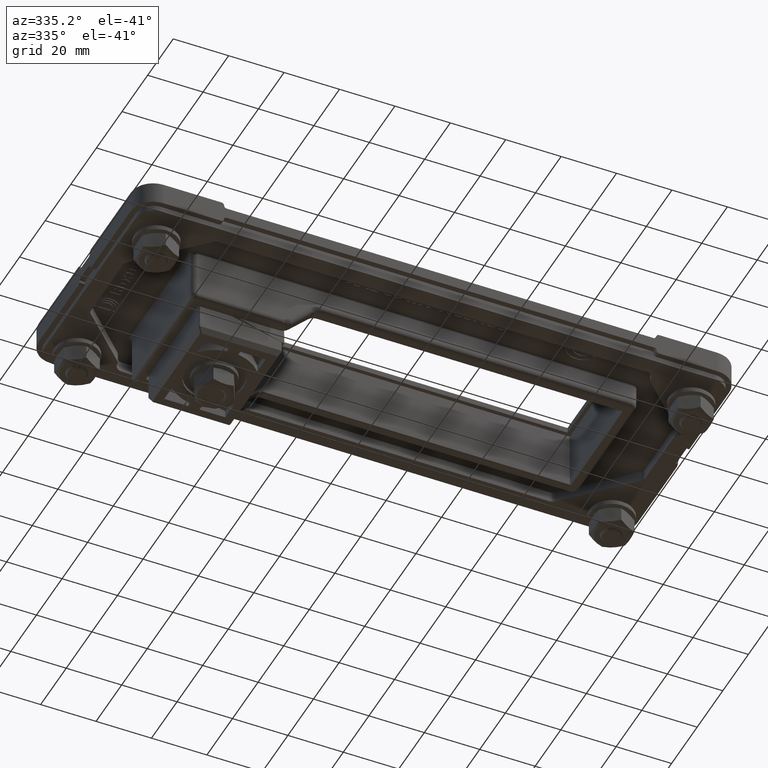
[diagram: clean part render]
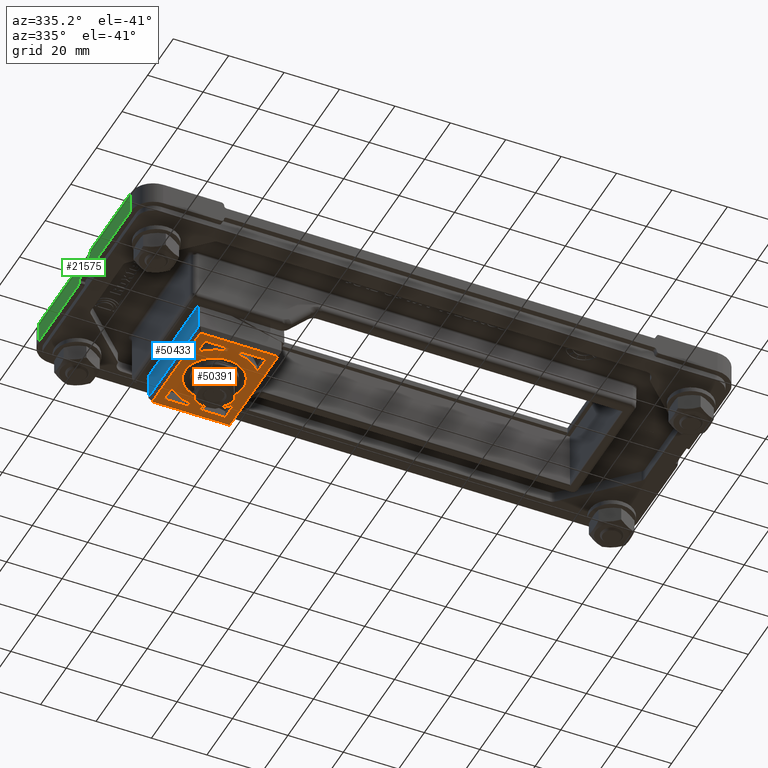
[diagram: same view with three faces highlighted in distinct colors, each labeled with its STEP entity id]
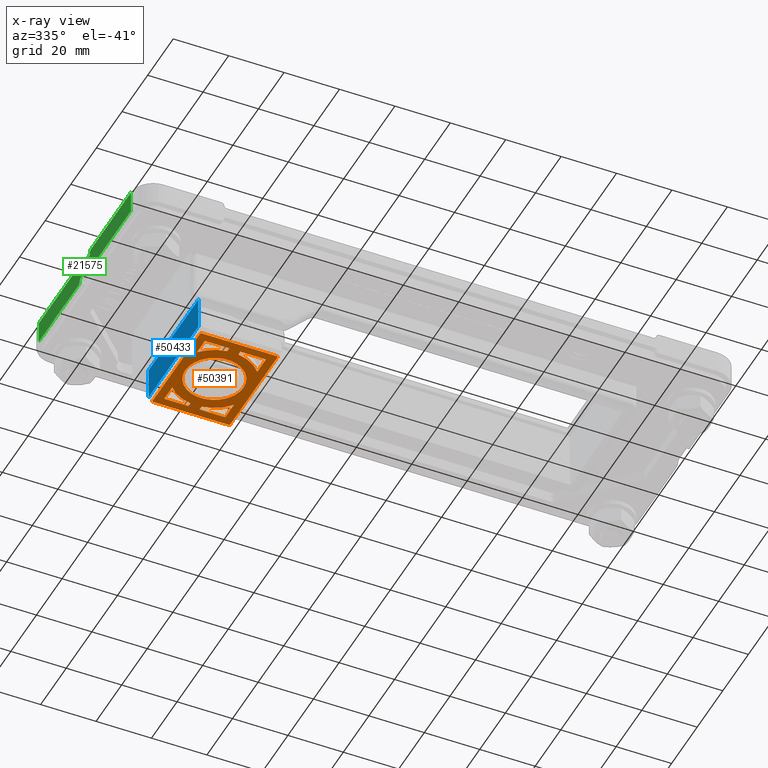
[diagram: x-ray of the same camera — body ghosted, the three highlighted faces saturated]
A machine part, auxiliary view with three faces highlighted in distinct colors.
The next image is the same camera in x-ray (body ghosted, the three faces saturated) — at least one of them is partly hidden behind the body in this view.
Their STEP definitions:

[orange] entity #50391 — the highlighted planar face has unit normal (0, -0, 1).
#49904=CARTESIAN_POINT('',(566.70626329083245,442.98383945658173,13.75));
#49905=VERTEX_POINT('',#49904);
#49906=CARTESIAN_POINT('',(556.20626329083257,442.98383945658173,13.75));
#49907=DIRECTION('',(0.0,0.0,-1.0));
#49908=DIRECTION('',(-1.0,0.0,0.0));
#49909=AXIS2_PLACEMENT_3D('',#49906,#49907,#49908);
#49910=CIRCLE('',#49909,10.5);
#49911=EDGE_CURVE('',#49905,#49905,#49910,.T.);
#49921=CARTESIAN_POINT('',(569.95626329083257,461.43662586108172,13.75));
#49922=VERTEX_POINT('',#49921);
#49940=CARTESIAN_POINT('',(569.50904969533235,461.88383945658182,13.75));
#49941=VERTEX_POINT('',#49940);
#49948=CARTESIAN_POINT('',(569.39724629645741,461.3248224622069,13.75));
#49949=DIRECTION('',(0.0,0.0,-1.0));
#49950=DIRECTION('',(0.707106781186594,0.707106781186501,0.0));
#49951=AXIS2_PLACEMENT_3D('',#49948,#49949,#49950);
#49952=ELLIPSE('',#49951,0.612372435695783,0.5);
#49953=EDGE_CURVE('',#49941,#49922,#49952,.T.);
#50014=CARTESIAN_POINT('',(569.95626329083257,424.53105305208169,13.75));
#50015=VERTEX_POINT('',#50014);
#50016=CARTESIAN_POINT('',(569.95626329083257,461.43662586108172,13.75));
#50017=DIRECTION('',(0.0,-1.0,0.0));
#50018=VECTOR('',#50017,36.905572809000034);
#50019=LINE('',#50016,#50018);
#50020=EDGE_CURVE('',#49922,#50015,#50019,.T.);
#50054=CARTESIAN_POINT('',(569.50904969533235,424.0838394565817,13.75));
#50055=VERTEX_POINT('',#50054);
#50072=CARTESIAN_POINT('',(569.39724629645741,424.6428564509564,13.75));
#50073=DIRECTION('',(0.0,0.0,-1.0));
#50074=DIRECTION('',(0.707106781186594,-0.707106781186501,0.0));
#50075=AXIS2_PLACEMENT_3D('',#50072,#50073,#50074);
#50076=ELLIPSE('',#50075,0.612372435695783,0.5);
#50077=EDGE_CURVE('',#50015,#50055,#50076,.T.);
#50131=CARTESIAN_POINT('',(542.40347688633233,424.0838394565817,13.75));
#50132=VERTEX_POINT('',#50131);
#50139=CARTESIAN_POINT('',(541.95626329083245,424.53105305208169,13.75));
#50140=VERTEX_POINT('',#50139);
#50141=CARTESIAN_POINT('',(542.51528028520738,424.64285645095674,13.75));
#50142=DIRECTION('',(0.0,0.0,-1.0));
#50143=DIRECTION('',(-0.707106781186548,-0.707106781186548,0.0));
#50144=AXIS2_PLACEMENT_3D('',#50141,#50142,#50143);
#50145=ELLIPSE('',#50144,0.612372435695794,0.5);
#50146=EDGE_CURVE('',#50132,#50140,#50145,.T.);
#50172=CARTESIAN_POINT('',(541.95626329083245,461.43662586108184,13.75));
#50173=VERTEX_POINT('',#50172);
#50174=CARTESIAN_POINT('',(541.95626329083245,424.53105305208169,13.75));
#50175=DIRECTION('',(0.0,1.0,0.0));
#50176=VECTOR('',#50175,36.905572809000148);
#50177=LINE('',#50174,#50176);
#50178=EDGE_CURVE('',#50140,#50173,#50177,.T.);
#50215=CARTESIAN_POINT('',(540.95626329083245,462.88383945658182,13.75));
#50216=DIRECTION('',(0.0,0.0,-1.0));
#50217=DIRECTION('',(-1.0,0.0,0.0));
#50218=AXIS2_PLACEMENT_3D('',#50215,#50216,#50217);
#50219=PLANE('',#50218);
#50220=ORIENTED_EDGE('',*,*,#49953,.F.);
#50221=CARTESIAN_POINT('',(542.40347688633233,461.88383945658182,13.75));
#50222=VERTEX_POINT('',#50221);
#50223=CARTESIAN_POINT('',(542.40347688633233,461.88383945658182,13.75));
#50224=DIRECTION('',(1.0,0.0,0.0));
#50225=VECTOR('',#50224,27.105572809000023);
#50226=LINE('',#50223,#50225);
#50227=EDGE_CURVE('',#50222,#49941,#50226,.T.);
#50228=ORIENTED_EDGE('',*,*,#50227,.F.);
#50229=CARTESIAN_POINT('',(542.51528028520738,461.3248224622069,13.75));
#50230=DIRECTION('',(0.0,0.0,-1.0));
#50231=DIRECTION('',(-0.707106781186548,0.707106781186548,0.0));
#50232=AXIS2_PLACEMENT_3D('',#50229,#50230,#50231);
#50233=ELLIPSE('',#50232,0.612372435695794,0.5);
#50234=EDGE_CURVE('',#50173,#50222,#50233,.T.);
#50235=ORIENTED_EDGE('',*,*,#50234,.F.);
#50236=ORIENTED_EDGE('',*,*,#50178,.F.);
#50237=ORIENTED_EDGE('',*,*,#50146,.F.);
#50238=CARTESIAN_POINT('',(569.50904969533235,424.0838394565817,13.75));
#50239=DIRECTION('',(-1.0,0.0,0.0));
#50240=VECTOR('',#50239,27.105572809000023);
#50241=LINE('',#50238,#50240);
#50242=EDGE_CURVE('',#50055,#50132,#50241,.T.);
#50243=ORIENTED_EDGE('',*,*,#50242,.F.);
#50244=ORIENTED_EDGE('',*,*,#50077,.F.);
#50245=ORIENTED_EDGE('',*,*,#50020,.F.);
#50246=EDGE_LOOP('',(#50220,#50228,#50235,#50236,#50237,#50243,#50244,#50245));
#50247=FACE_OUTER_BOUND('',#50246,.T.);
#50248=ORIENTED_EDGE('',*,*,#49911,.T.);
#50249=EDGE_LOOP('',(#50248));
#50250=FACE_BOUND('',#50249,.T.);
#50251=CARTESIAN_POINT('',(554.20626329083245,457.34524607292684,13.75));
#50252=VERTEX_POINT('',#50251);
#50253=CARTESIAN_POINT('',(544.95626329083257,452.13192668834768,13.75));
#50254=VERTEX_POINT('',#50253);
#50255=CARTESIAN_POINT('',(556.20626329083257,442.98383945658173,13.75));
#50256=DIRECTION('',(0.0,0.0,1.0));
#50257=DIRECTION('',(0.0,1.0,0.0));
#50258=AXIS2_PLACEMENT_3D('',#50255,#50256,#50257);
#50259=CIRCLE('',#50258,14.500000000000002);
#50260=EDGE_CURVE('',#50252,#50254,#50259,.T.);
#50261=ORIENTED_EDGE('',*,*,#50260,.T.);
#50262=CARTESIAN_POINT('',(544.95626329083257,458.88383945658177,13.75));
#50263=VERTEX_POINT('',#50262);
#50264=CARTESIAN_POINT('',(544.95626329083257,452.13192668834768,13.75));
#50265=DIRECTION('',(0.0,1.0,0.0));
#50266=VECTOR('',#50265,6.751912768234092);
#50267=LINE('',#50264,#50266);
#50268=EDGE_CURVE('',#50254,#50263,#50267,.T.);
#50269=ORIENTED_EDGE('',*,*,#50268,.T.);
#50270=CARTESIAN_POINT('',(554.20626329083245,458.88383945658177,13.75));
#50271=VERTEX_POINT('',#50270);
#50272=CARTESIAN_POINT('',(544.95626329083257,458.88383945658177,13.75));
#50273=DIRECTION('',(1.0,0.0,0.0));
#50274=VECTOR('',#50273,9.25);
#50275=LINE('',#50272,#50274);
#50276=EDGE_CURVE('',#50263,#50271,#50275,.T.);
#50277=ORIENTED_EDGE('',*,*,#50276,.T.);
#50278=CARTESIAN_POINT('',(554.20626329083245,458.88383945658177,13.75));
#50279=DIRECTION('',(0.0,-1.0,0.0));
#50280=VECTOR('',#50279,1.538593383654927);
#50281=LINE('',#50278,#50280);
#50282=EDGE_CURVE('',#50271,#50252,#50281,.T.);
#50283=ORIENTED_EDGE('',*,*,#50282,.T.);
#50284=EDGE_LOOP('',(#50261,#50269,#50277,#50283));
#50285=FACE_BOUND('',#50284,.T.);
#50286=CARTESIAN_POINT('',(566.95626329083211,452.71458968459615,13.75));
#50287=VERTEX_POINT('',#50286);
#50288=CARTESIAN_POINT('',(558.20626329083245,457.34524607292684,13.75));
#50289=VERTEX_POINT('',#50288);
#50290=CARTESIAN_POINT('',(556.20626329083257,442.98383945658173,13.75));
#50291=DIRECTION('',(0.0,0.0,1.0));
#50292=DIRECTION('',(0.0,1.0,0.0));
#50293=AXIS2_PLACEMENT_3D('',#50290,#50291,#50292);
#50294=CIRCLE('',#50293,14.500000000000002);
#50295=EDGE_CURVE('',#50287,#50289,#50294,.T.);
#50296=ORIENTED_EDGE('',*,*,#50295,.T.);
#50297=CARTESIAN_POINT('',(558.20626329083245,458.88383945658177,13.75));
#50298=VERTEX_POINT('',#50297);
#50299=CARTESIAN_POINT('',(558.20626329083245,457.34524607292684,13.75));
#50300=DIRECTION('',(0.0,1.0,0.0));
#50301=VECTOR('',#50300,1.538593383654927);
#50302=LINE('',#50299,#50301);
#50303=EDGE_CURVE('',#50289,#50298,#50302,.T.);
#50304=ORIENTED_EDGE('',*,*,#50303,.T.);
#50305=CARTESIAN_POINT('',(566.95626329083211,458.88383945658177,13.75));
#50306=VERTEX_POINT('',#50305);
#50307=CARTESIAN_POINT('',(558.20626329083245,458.88383945658177,13.75));
#50308=DIRECTION('',(1.0,0.0,0.0));
#50309=VECTOR('',#50308,8.749999999999659);
#50310=LINE('',#50307,#50309);
#50311=EDGE_CURVE('',#50298,#50306,#50310,.T.);
#50312=ORIENTED_EDGE('',*,*,#50311,.T.);
#50313=CARTESIAN_POINT('',(566.95626329083211,458.88383945658177,13.75));
#50314=DIRECTION('',(0.0,-1.0,0.0));
#50315=VECTOR('',#50314,6.169249771985619);
#50316=LINE('',#50313,#50315);
#50317=EDGE_CURVE('',#50306,#50287,#50316,.T.);
#50318=ORIENTED_EDGE('',*,*,#50317,.T.);
#50319=EDGE_LOOP('',(#50296,#50304,#50312,#50318));
#50320=FACE_BOUND('',#50319,.T.);
#50321=CARTESIAN_POINT('',(544.95626329083257,433.83575222481579,13.75));
#50322=VERTEX_POINT('',#50321);
#50323=CARTESIAN_POINT('',(554.20626329083245,428.62243284023663,13.75));
#50324=VERTEX_POINT('',#50323);
#50325=CARTESIAN_POINT('',(556.20626329083257,442.98383945658173,13.75));
#50326=DIRECTION('',(0.0,0.0,1.0));
#50327=DIRECTION('',(0.0,1.0,0.0));
#50328=AXIS2_PLACEMENT_3D('',#50325,#50326,#50327);
#50329=CIRCLE('',#50328,14.500000000000002);
#50330=EDGE_CURVE('',#50322,#50324,#50329,.T.);
#50331=ORIENTED_EDGE('',*,*,#50330,.T.);
#50332=CARTESIAN_POINT('',(554.20626329083245,427.0838394565817,13.75));
#50333=VERTEX_POINT('',#50332);
#50334=CARTESIAN_POINT('',(554.20626329083245,428.62243284023663,13.75));
#50335=DIRECTION('',(0.0,-1.0,0.0));
#50336=VECTOR('',#50335,1.538593383654927);
#50337=LINE('',#50334,#50336);
#50338=EDGE_CURVE('',#50324,#50333,#50337,.T.);
#50339=ORIENTED_EDGE('',*,*,#50338,.T.);
#50340=CARTESIAN_POINT('',(544.95626329083257,427.0838394565817,13.75));
#50341=VERTEX_POINT('',#50340);
#50342=CARTESIAN_POINT('',(554.20626329083245,427.0838394565817,13.75));
#50343=DIRECTION('',(-1.0,0.0,0.0));
#50344=VECTOR('',#50343,9.25);
#50345=LINE('',#50342,#50344);
#50346=EDGE_CURVE('',#50333,#50341,#50345,.T.);
#50347=ORIENTED_EDGE('',*,*,#50346,.T.);
#50348=CARTESIAN_POINT('',(544.95626329083257,427.0838394565817,13.75));
#50349=DIRECTION('',(0.0,1.0,0.0));
#50350=VECTOR('',#50349,6.751912768234092);
#50351=LINE('',#50348,#50350);
#50352=EDGE_CURVE('',#50341,#50322,#50351,.T.);
#50353=ORIENTED_EDGE('',*,*,#50352,.T.);
#50354=EDGE_LOOP('',(#50331,#50339,#50347,#50353));
#50355=FACE_BOUND('',#50354,.T.);
#50356=CARTESIAN_POINT('',(558.20626329083245,428.62243284023663,13.75));
#50357=VERTEX_POINT('',#50356);
#50358=CARTESIAN_POINT('',(566.95626329083245,433.25308922856732,13.75));
#50359=VERTEX_POINT('',#50358);
#50360=CARTESIAN_POINT('',(556.20626329083257,442.98383945658173,13.75));
#50361=DIRECTION('',(0.0,0.0,1.0));
#50362=DIRECTION('',(0.0,1.0,0.0));
#50363=AXIS2_PLACEMENT_3D('',#50360,#50361,#50362);
#50364=CIRCLE('',#50363,14.500000000000002);
#50365=EDGE_CURVE('',#50357,#50359,#50364,.T.);
#50366=ORIENTED_EDGE('',*,*,#50365,.T.);
#50367=CARTESIAN_POINT('',(566.95626329083245,427.0838394565817,13.75));
#50368=VERTEX_POINT('',#50367);
#50369=CARTESIAN_POINT('',(566.95626329083245,433.25308922856732,13.75));
#50370=DIRECTION('',(0.0,-1.0,0.0));
#50371=VECTOR('',#50370,6.169249771985619);
#50372=LINE('',#50369,#50371);
#50373=EDGE_CURVE('',#50359,#50368,#50372,.T.);
#50374=ORIENTED_EDGE('',*,*,#50373,.T.);
#50375=CARTESIAN_POINT('',(558.20626329083245,427.0838394565817,13.75));
#50376=VERTEX_POINT('',#50375);
#50377=CARTESIAN_POINT('',(566.95626329083245,427.0838394565817,13.75));
#50378=DIRECTION('',(-1.0,0.0,0.0));
#50379=VECTOR('',#50378,8.75);
#50380=LINE('',#50377,#50379);
#50381=EDGE_CURVE('',#50368,#50376,#50380,.T.);
#50382=ORIENTED_EDGE('',*,*,#50381,.T.);
#50383=CARTESIAN_POINT('',(558.20626329083245,427.0838394565817,13.75));
#50384=DIRECTION('',(0.0,1.0,0.0));
#50385=VECTOR('',#50384,1.538593383654927);
#50386=LINE('',#50383,#50385);
#50387=EDGE_CURVE('',#50376,#50357,#50386,.T.);
#50388=ORIENTED_EDGE('',*,*,#50387,.T.);
#50389=EDGE_LOOP('',(#50366,#50374,#50382,#50388));
#50390=FACE_BOUND('',#50389,.T.);
#50391=ADVANCED_FACE('',(#50247,#50250,#50285,#50320,#50355,#50390),#50219,.F.);

[blue] entity #50433 — the highlighted planar face has unit normal (-1, -0, 0).
#49964=CARTESIAN_POINT('',(570.95626329083211,462.38383945658177,11.75));
#49965=VERTEX_POINT('',#49964);
#49973=CARTESIAN_POINT('',(570.95626329083245,462.38383945658177,0.0));
#49974=VERTEX_POINT('',#49973);
#49975=CARTESIAN_POINT('',(570.95626329083211,462.38383945658177,11.75));
#49976=DIRECTION('',(0.0,0.0,-1.0));
#49977=VECTOR('',#49976,11.75);
#49978=LINE('',#49975,#49977);
#49979=EDGE_CURVE('',#49965,#49974,#49978,.T.);
#50030=CARTESIAN_POINT('',(570.95626329083211,423.58383945658176,11.75));
#50031=VERTEX_POINT('',#50030);
#50039=CARTESIAN_POINT('',(570.95626329083211,423.58383945658176,11.75));
#50040=DIRECTION('',(0.0,1.0,0.0));
#50041=VECTOR('',#50040,38.800000000000011);
#50042=LINE('',#50039,#50041);
#50043=EDGE_CURVE('',#50031,#49965,#50042,.T.);
#50105=CARTESIAN_POINT('',(570.95626329083245,423.58383945658176,0.0));
#50106=VERTEX_POINT('',#50105);
#50114=CARTESIAN_POINT('',(570.95626329083245,423.58383945658176,0.0));
#50115=DIRECTION('',(0.0,0.0,1.0));
#50116=VECTOR('',#50115,11.75);
#50117=LINE('',#50114,#50116);
#50118=EDGE_CURVE('',#50106,#50031,#50117,.T.);
#50417=CARTESIAN_POINT('',(570.95626329083211,462.88383945658182,0.0));
#50418=DIRECTION('',(1.0,0.0,0.0));
#50419=DIRECTION('',(0.0,0.0,-1.0));
#50420=AXIS2_PLACEMENT_3D('',#50417,#50418,#50419);
#50421=PLANE('',#50420);
#50422=ORIENTED_EDGE('',*,*,#50118,.F.);
#50423=CARTESIAN_POINT('',(570.95626329083245,462.38383945658177,0.0));
#50424=DIRECTION('',(0.0,-1.0,0.0));
#50425=VECTOR('',#50424,38.800000000000011);
#50426=LINE('',#50423,#50425);
#50427=EDGE_CURVE('',#49974,#50106,#50426,.T.);
#50428=ORIENTED_EDGE('',*,*,#50427,.F.);
#50429=ORIENTED_EDGE('',*,*,#49979,.F.);
#50430=ORIENTED_EDGE('',*,*,#50043,.F.);
#50431=EDGE_LOOP('',(#50422,#50428,#50429,#50430));
#50432=FACE_OUTER_BOUND('',#50431,.T.);
#50433=ADVANCED_FACE('',(#50432),#50421,.T.);

[green] entity #21575 — the highlighted planar face has unit normal (-1, 0, 0).
#9468=CARTESIAN_POINT('',(-138.0,3.0871229965972,9.500000000000002));
#9469=VERTEX_POINT('',#9468);
#9648=CARTESIAN_POINT('',(-138.0,-3.087122996597156,9.500000000000002));
#9649=VERTEX_POINT('',#9648);
#9656=CARTESIAN_POINT('',(-138.0,3.087122996597202,9.500000000000002));
#9657=DIRECTION('',(0.0,-1.0,0.0));
#9658=VECTOR('',#9657,6.174245993194354);
#9659=LINE('',#9656,#9658);
#9660=EDGE_CURVE('',#9469,#9649,#9659,.T.);
#18037=CARTESIAN_POINT('',(-138.0,3.017302736884329,13.5));
#18038=VERTEX_POINT('',#18037);
#18047=CARTESIAN_POINT('',(-138.0,-3.017302736884284,13.5));
#18048=VERTEX_POINT('',#18047);
#18049=CARTESIAN_POINT('',(-138.0,-3.017302736884282,13.5));
#18050=DIRECTION('',(0.0,1.0,0.0));
#18051=VECTOR('',#18050,6.034605473768608);
#18052=LINE('',#18049,#18051);
#18053=EDGE_CURVE('',#18048,#18038,#18052,.T.);
#20251=CARTESIAN_POINT('',(-138.0,4.087579957528629,8.482547593562723));
#20252=VERTEX_POINT('',#20251);
#20253=CARTESIAN_POINT('',(-138.0,5.087427652685022,7.5));
#20254=VERTEX_POINT('',#20253);
#20255=CARTESIAN_POINT('',(-138.00000000000006,5.087427652685018,8.500000000000007));
#20256=DIRECTION('',(1.0,0.0,0.0));
#20257=DIRECTION('',(0.0,-0.700909264299851,-0.713250449154181));
#20258=AXIS2_PLACEMENT_3D('',#20255,#20256,#20257);
#20259=CIRCLE('',#20258,1.0);
#20260=EDGE_CURVE('',#20252,#20254,#20259,.T.);
#20302=CARTESIAN_POINT('',(-138.0,4.086970691753596,8.517452406437284));
#20303=VERTEX_POINT('',#20302);
#20310=CARTESIAN_POINT('',(-138.0,4.086970691753596,8.517452406437283));
#20311=DIRECTION('',(0.0,0.017452406437289,-0.999847695156391));
#20312=VECTOR('',#20311,0.03491012985643);
#20313=LINE('',#20310,#20312);
#20314=EDGE_CURVE('',#20303,#20252,#20313,.T.);
#20358=CARTESIAN_POINT('',(-138.00000000000006,3.087122996597201,8.5));
#20359=DIRECTION('',(-1.0,0.0,0.0));
#20360=DIRECTION('',(0.0,0.70090926429985,0.713250449154182));
#20361=AXIS2_PLACEMENT_3D('',#20358,#20359,#20360);
#20362=CIRCLE('',#20361,1.0);
#20363=EDGE_CURVE('',#9469,#20303,#20362,.T.);
#20401=CARTESIAN_POINT('',(-138.0,-5.087427652684973,7.5));
#20402=VERTEX_POINT('',#20401);
#20409=CARTESIAN_POINT('',(-138.0,-4.087579957528581,8.482547593562721));
#20410=VERTEX_POINT('',#20409);
#20411=CARTESIAN_POINT('',(-138.0,-5.087427652684974,8.500000000000004));
#20412=DIRECTION('',(1.0,0.0,0.0));
#20413=DIRECTION('',(0.0,0.700909264299851,-0.713250449154181));
#20414=AXIS2_PLACEMENT_3D('',#20411,#20412,#20413);
#20415=CIRCLE('',#20414,1.0);
#20416=EDGE_CURVE('',#20402,#20410,#20415,.T.);
#20472=CARTESIAN_POINT('',(-138.0,-4.086970691753548,8.517452406437284));
#20473=VERTEX_POINT('',#20472);
#20474=CARTESIAN_POINT('',(-138.0,-4.087579957528581,8.482547593562721));
#20475=DIRECTION('',(0.0,0.017452406437288,0.999847695156391));
#20476=VECTOR('',#20475,0.034910129856431);
#20477=LINE('',#20474,#20476);
#20478=EDGE_CURVE('',#20473,#20410,#20477,.F.);
#20497=CARTESIAN_POINT('',(-138.0,-3.087122996597157,8.5));
#20498=DIRECTION('',(-1.0,0.0,0.0));
#20499=DIRECTION('',(0.0,-0.70090926429985,0.713250449154182));
#20500=AXIS2_PLACEMENT_3D('',#20497,#20498,#20499);
#20501=CIRCLE('',#20500,1.0);
#20502=EDGE_CURVE('',#20473,#9649,#20501,.T.);
#21337=CARTESIAN_POINT('',(-138.0,5.017607392972145,15.500000000000004));
#21338=VERTEX_POINT('',#21337);
#21339=CARTESIAN_POINT('',(-138.0,4.017759697815758,14.517452406437279));
#21340=VERTEX_POINT('',#21339);
#21341=CARTESIAN_POINT('',(-138.00000000000006,5.017607392972145,14.499999999999995));
#21342=DIRECTION('',(1.0,0.0,0.0));
#21343=DIRECTION('',(0.0,-0.700909264299849,0.713250449154183));
#21344=AXIS2_PLACEMENT_3D('',#21341,#21342,#21343);
#21345=CIRCLE('',#21344,1.0);
#21346=EDGE_CURVE('',#21338,#21340,#21345,.T.);
#21419=CARTESIAN_POINT('',(-138.0,4.017150432040725,14.482547593562723));
#21420=VERTEX_POINT('',#21419);
#21421=CARTESIAN_POINT('',(-138.0,4.017759697815758,14.517452406437279));
#21422=DIRECTION('',(0.0,-0.017452406437291,-0.999847695156391));
#21423=VECTOR('',#21422,0.034910129856426);
#21424=LINE('',#21421,#21423);
#21425=EDGE_CURVE('',#21420,#21340,#21424,.F.);
#21444=CARTESIAN_POINT('',(-138.00000000000006,3.017302736884331,14.500000000000007));
#21445=DIRECTION('',(-1.0,0.0,0.0));
#21446=DIRECTION('',(0.0,0.70090926429985,-0.713250449154183));
#21447=AXIS2_PLACEMENT_3D('',#21444,#21445,#21446);
#21448=CIRCLE('',#21447,1.0);
#21449=EDGE_CURVE('',#21420,#18038,#21448,.T.);
#21471=CARTESIAN_POINT('',(-138.0,-4.017759697815709,14.517452406437281));
#21472=VERTEX_POINT('',#21471);
#21479=CARTESIAN_POINT('',(-138.0,-5.017607392972101,15.500000000000004));
#21480=VERTEX_POINT('',#21479);
#21481=CARTESIAN_POINT('',(-138.0,-5.017607392972105,14.499999999999996));
#21482=DIRECTION('',(1.0,0.0,0.0));
#21483=DIRECTION('',(0.0,0.700909264299852,0.713250449154181));
#21484=AXIS2_PLACEMENT_3D('',#21481,#21482,#21483);
#21485=CIRCLE('',#21484,1.0);
#21486=EDGE_CURVE('',#21472,#21480,#21485,.T.);
#21497=CARTESIAN_POINT('',(-138.0,-43.999999999999979,11.500000000000002));
#21498=DIRECTION('',(-1.0,0.0,0.0));
#21499=DIRECTION('',(0.0,0.0,1.0));
#21500=AXIS2_PLACEMENT_3D('',#21497,#21498,#21499);
#21501=PLANE('',#21500);
#21502=ORIENTED_EDGE('',*,*,#20260,.F.);
#21503=ORIENTED_EDGE('',*,*,#20314,.F.);
#21504=ORIENTED_EDGE('',*,*,#20363,.F.);
#21505=ORIENTED_EDGE('',*,*,#9660,.T.);
#21506=ORIENTED_EDGE('',*,*,#20502,.F.);
#21507=ORIENTED_EDGE('',*,*,#20478,.T.);
#21508=ORIENTED_EDGE('',*,*,#20416,.F.);
#21509=CARTESIAN_POINT('',(-138.0,-35.999999999999979,7.500000000000004));
#21510=VERTEX_POINT('',#21509);
#21511=CARTESIAN_POINT('',(-138.0,-35.999999999999979,7.5));
#21512=DIRECTION('',(0.0,1.0,0.0));
#21513=VECTOR('',#21512,30.912572347315006);
#21514=LINE('',#21511,#21513);
#21515=EDGE_CURVE('',#21510,#20402,#21514,.T.);
#21516=ORIENTED_EDGE('',*,*,#21515,.F.);
#21517=CARTESIAN_POINT('',(-138.0,-35.999999999999979,15.499999999999998));
#21518=VERTEX_POINT('',#21517);
#21519=CARTESIAN_POINT('',(-138.0,-35.999999999999979,7.500000000000005));
#21520=DIRECTION('',(0.0,0.0,1.0));
#21521=VECTOR('',#21520,7.999999999999993);
#21522=LINE('',#21519,#21521);
#21523=EDGE_CURVE('',#21510,#21518,#21522,.T.);
#21524=ORIENTED_EDGE('',*,*,#21523,.T.);
#21525=CARTESIAN_POINT('',(-138.0,-35.999999999999979,15.500000000000004));
#21526=DIRECTION('',(0.0,1.0,0.0));
#21527=VECTOR('',#21526,30.982392607027876);
#21528=LINE('',#21525,#21527);
#21529=EDGE_CURVE('',#21518,#21480,#21528,.T.);
#21530=ORIENTED_EDGE('',*,*,#21529,.T.);
#21531=ORIENTED_EDGE('',*,*,#21486,.F.);
#21532=CARTESIAN_POINT('',(-138.0,-4.017150432040677,14.482547593562723));
#21533=VERTEX_POINT('',#21532);
#21534=CARTESIAN_POINT('',(-138.0,-4.017150432040677,14.482547593562723));
#21535=DIRECTION('',(0.0,-0.01745240643729,0.999847695156391));
#21536=VECTOR('',#21535,0.034910129856428);
#21537=LINE('',#21534,#21536);
#21538=EDGE_CURVE('',#21533,#21472,#21537,.T.);
#21539=ORIENTED_EDGE('',*,*,#21538,.F.);
#21540=CARTESIAN_POINT('',(-138.0,-3.017302736884286,14.500000000000007));
#21541=DIRECTION('',(-1.0,0.0,0.0));
#21542=DIRECTION('',(0.0,-0.70090926429985,-0.713250449154183));
#21543=AXIS2_PLACEMENT_3D('',#21540,#21541,#21542);
#21544=CIRCLE('',#21543,1.0);
#21545=EDGE_CURVE('',#18048,#21533,#21544,.T.);
#21546=ORIENTED_EDGE('',*,*,#21545,.F.);
#21547=ORIENTED_EDGE('',*,*,#18053,.T.);
#21548=ORIENTED_EDGE('',*,*,#21449,.F.);
#21549=ORIENTED_EDGE('',*,*,#21425,.T.);
#21550=ORIENTED_EDGE('',*,*,#21346,.F.);
#21551=CARTESIAN_POINT('',(-138.0,36.000000000000021,15.499999999999996));
#21552=VERTEX_POINT('',#21551);
#21553=CARTESIAN_POINT('',(-138.0,5.017607392972145,15.500000000000004));
#21554=DIRECTION('',(0.0,1.0,0.0));
#21555=VECTOR('',#21554,30.982392607027876);
#21556=LINE('',#21553,#21555);
#21557=EDGE_CURVE('',#21338,#21552,#21556,.T.);
#21558=ORIENTED_EDGE('',*,*,#21557,.T.);
#21559=CARTESIAN_POINT('',(-138.0,36.000000000000021,7.500000000000007));
#21560=VERTEX_POINT('',#21559);
#21561=CARTESIAN_POINT('',(-138.0,36.000000000000021,15.499999999999996));
#21562=DIRECTION('',(0.0,0.0,-1.0));
#21563=VECTOR('',#21562,7.999999999999989);
#21564=LINE('',#21561,#21563);
#21565=EDGE_CURVE('',#21552,#21560,#21564,.T.);
#21566=ORIENTED_EDGE('',*,*,#21565,.T.);
#21567=CARTESIAN_POINT('',(-138.0,5.087427652685019,7.5));
#21568=DIRECTION('',(0.0,1.0,0.0));
#21569=VECTOR('',#21568,30.912572347315002);
#21570=LINE('',#21567,#21569);
#21571=EDGE_CURVE('',#20254,#21560,#21570,.T.);
#21572=ORIENTED_EDGE('',*,*,#21571,.F.);
#21573=EDGE_LOOP('',(#21502,#21503,#21504,#21505,#21506,#21507,#21508,#21516,#21524,#21530,#21531,#21539,#21546,#21547,#21548,#21549,#21550,#21558,#21566,#21572));
#21574=FACE_OUTER_BOUND('',#21573,.T.);
#21575=ADVANCED_FACE('',(#21574),#21501,.T.);